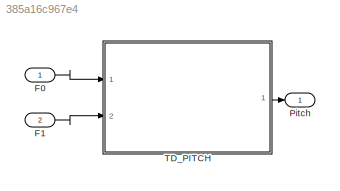
MODEL slx_385a16c967e4
KIND model
CONFIG AbsTol = auto
CONFIG EnableMultiTasking = off
CONFIG FixedStep = auto
CONFIG MaxStep = auto
CONFIG MinStep = auto
CONFIG RelTol = 1e-3
CONFIG SampleTimeConstraint = Unconstrained
CONFIG Solver = VariableStepAuto
CONFIG SolverName = VariableStepAuto
CONFIG StartTime = 0.0
CONFIG StopTime = 10.0
BLOCK [Inport] F0
  IconDisplay = Port number
BLOCK [Inport] F1 
  IconDisplay = Port number
  Port = 2
BLOCK [Outport] Pitch
  IconDisplay = Port number
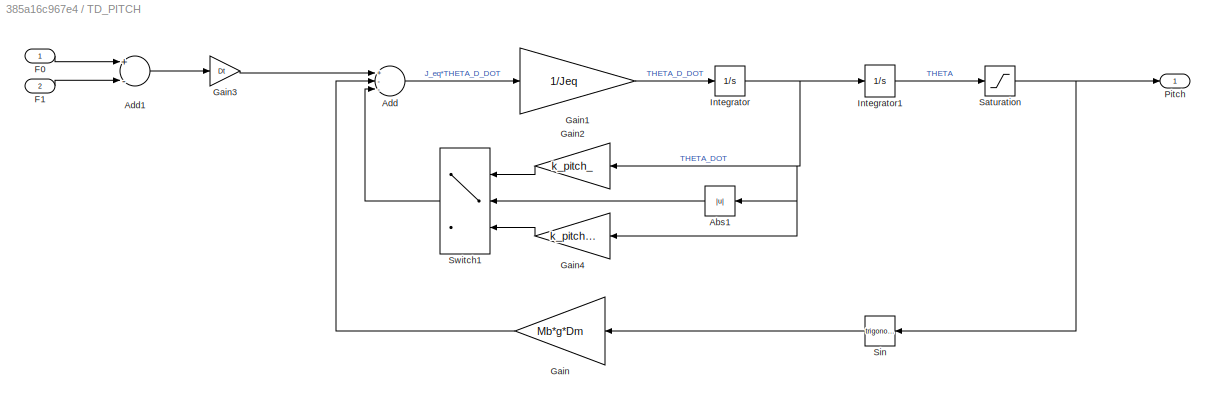
BLOCK [SubSystem] TD_PITCH
  Ports = [2, 1]
  RequestExecContextInheritance = off
BLOCK [Abs] TD_PITCH/Abs1
  SaturateOnIntegerOverflow = off
BLOCK [Sum] TD_PITCH/Add
  InputSameDT = off
  Inputs = +--
  OutDataTypeStr = Inherit: Inherit via internal rule
  Ports = [3, 1]
  SaturateOnIntegerOverflow = off
BLOCK [Sum] TD_PITCH/Add1
  InputSameDT = off
  Inputs = +-
  OutDataTypeStr = Inherit: Inherit via internal rule
  Ports = [2, 1]
  SaturateOnIntegerOverflow = off
BLOCK [Inport] TD_PITCH/F0
  IconDisplay = Port number
BLOCK [Inport] TD_PITCH/F1 
  IconDisplay = Port number
  Port = 2
BLOCK [Gain] TD_PITCH/Gain
  Gain = Mb*g*Dm
  OutDataTypeStr = Inherit: Inherit via internal rule
  ParamDataTypeStr = Inherit: Inherit via internal rule
  SaturateOnIntegerOverflow = off
BLOCK [Gain] TD_PITCH/Gain1
  Gain = 1/Jeq
  OutDataTypeStr = Inherit: Inherit via internal rule
  ParamDataTypeStr = Inherit: Inherit via internal rule
  SaturateOnIntegerOverflow = off
BLOCK [Gain] TD_PITCH/Gain2
  Gain = k_pitch_
  OutDataTypeStr = Inherit: Inherit via internal rule
  ParamDataTypeStr = Inherit: Inherit via internal rule
  SaturateOnIntegerOverflow = off
BLOCK [Gain] TD_PITCH/Gain3
  Gain = Dt
  OutDataTypeStr = Inherit: Inherit via internal rule
  ParamDataTypeStr = Inherit: Inherit via internal rule
  SaturateOnIntegerOverflow = off
BLOCK [Gain] TD_PITCH/Gain4
  Gain = k_pitch_ * 2
  OutDataTypeStr = Inherit: Inherit via internal rule
  ParamDataTypeStr = Inherit: Inherit via internal rule
  SaturateOnIntegerOverflow = off
BLOCK [Integrator] TD_PITCH/Integrator
  Ports = [1, 1]
BLOCK [Integrator] TD_PITCH/Integrator1
  Ports = [1, 1]
BLOCK [Outport] TD_PITCH/Pitch
  IconDisplay = Port number
BLOCK [Saturate] TD_PITCH/Saturation
  InputPortMap = u0
  LowerLimit = -0.93
  Ports = [1, 1]
  UpperLimit = 0.93
BLOCK [Trigonometry] TD_PITCH/Sin
  Ports = [1, 1]
BLOCK [Switch] TD_PITCH/Switch1
  Criteria = u2 > Threshold
  InputSameDT = off
  SaturateOnIntegerOverflow = off
  Threshold = 0.15
LINE F0:1 -> TD_PITCH:1
LINE F1 :1 -> TD_PITCH:2
LINE TD_PITCH/Abs1:1 -> TD_PITCH/Switch1:2
LINE TD_PITCH/Add1:1 -> TD_PITCH/Gain3:1
LINE TD_PITCH/Add:1 -> TD_PITCH/Gain1:1
LINE TD_PITCH/F0:1 -> TD_PITCH/Add1:1
LINE TD_PITCH/F1 :1 -> TD_PITCH/Add1:2
LINE TD_PITCH/Gain1:1 -> TD_PITCH/Integrator:1
LINE TD_PITCH/Gain2:1 -> TD_PITCH/Switch1:1
LINE TD_PITCH/Gain3:1 -> TD_PITCH/Add:1
LINE TD_PITCH/Gain4:1 -> TD_PITCH/Switch1:3
LINE TD_PITCH/Gain:1 -> TD_PITCH/Add:2
LINE TD_PITCH/Integrator1:1 -> TD_PITCH/Saturation:1
NET TD_PITCH/Integrator:1 -> TD_PITCH/Abs1:1, TD_PITCH/Gain2:1, TD_PITCH/Gain4:1, TD_PITCH/Integrator1:1
NET TD_PITCH/Saturation:1 -> TD_PITCH/Pitch:1, TD_PITCH/Sin:1
LINE TD_PITCH/Sin:1 -> TD_PITCH/Gain:1
LINE TD_PITCH/Switch1:1 -> TD_PITCH/Add:3
LINE TD_PITCH:1 -> Pitch:1
note: NET lines group one-source signal fan-out (src -> all destinations, sorted); 1:1 wires keep LINE
